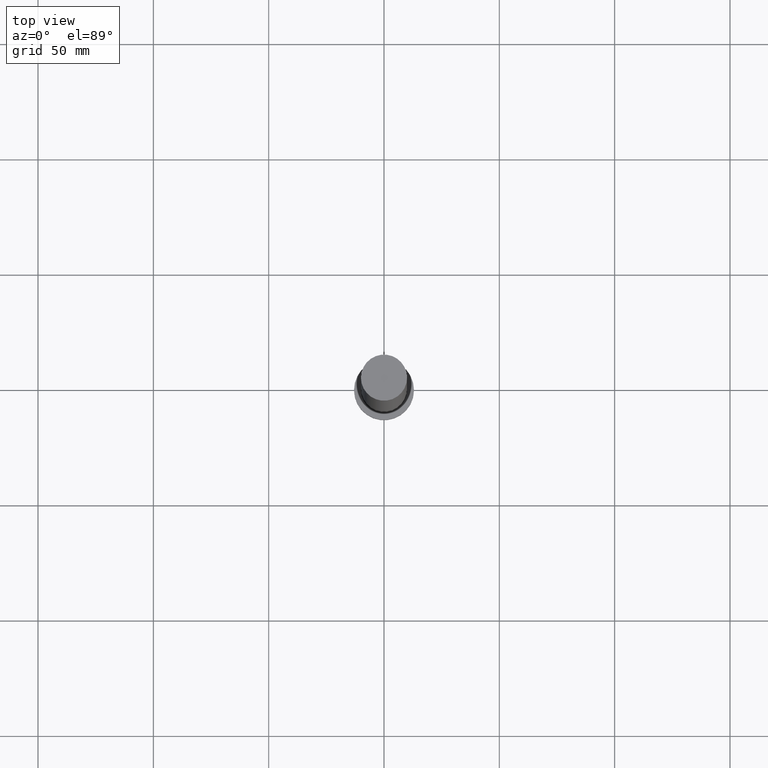
[diagram: clean part render]
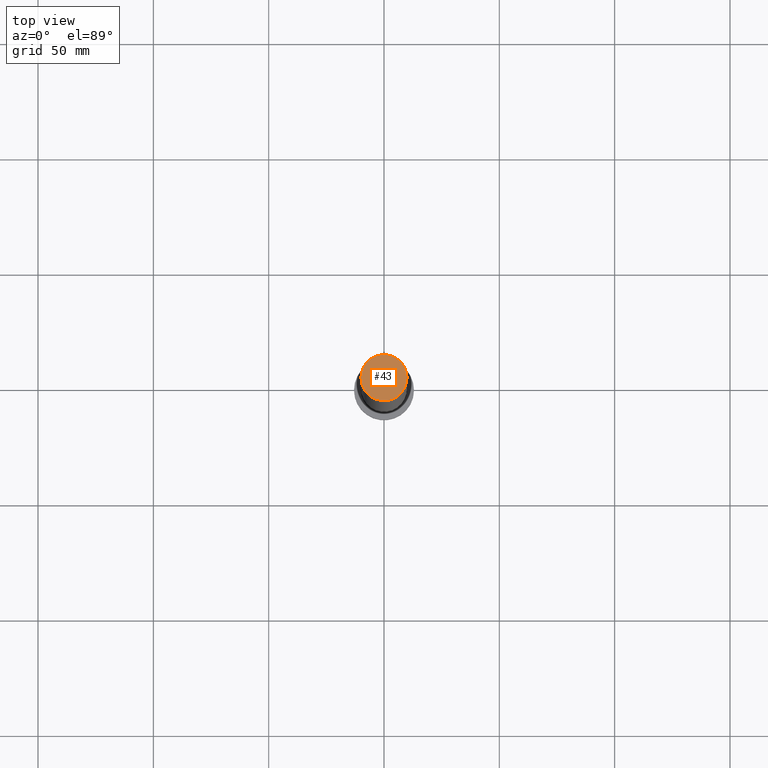
[diagram: same view with one face highlighted and labeled with its STEP entity id]
A machine part, top view. The second image highlights one B-rep face of the part: STEP entity #43.
In plain terms, the highlighted planar face has unit normal (0, 0, 1).
Its self-contained STEP definition (entity closure, byte-faithful):
#1 = CARTESIAN_POINT ( 'NONE',  ( -10.00000000000000000, 0.000000000000000000, 315.0000000000000000 ) ) ;
#6 = DIRECTION ( 'NONE',  ( 0.000000000000000000, 0.000000000000000000, 1.000000000000000000 ) ) ;
#32 = EDGE_CURVE ( 'NONE', #189, #156, #184, .T. ) ;
#43 = ADVANCED_FACE ( 'NONE', ( #131 ), #202, .T. ) ;
#63 = ORIENTED_EDGE ( 'NONE', *, *, #99, .T. ) ;
#78 = CARTESIAN_POINT ( 'NONE',  ( 0.000000000000000000, 0.000000000000000000, 315.0000000000000000 ) ) ;
#82 = DIRECTION ( 'NONE',  ( 1.000000000000000000, 0.000000000000000000, 0.000000000000000000 ) ) ;
#99 = EDGE_CURVE ( 'NONE', #156, #189, #240, .T. ) ;
#110 = AXIS2_PLACEMENT_3D ( 'NONE', #143, #213, #197 ) ;
#114 = AXIS2_PLACEMENT_3D ( 'NONE', #126, #6, #82 ) ;
#121 = DIRECTION ( 'NONE',  ( 1.000000000000000000, 0.000000000000000000, 0.000000000000000000 ) ) ;
#126 = CARTESIAN_POINT ( 'NONE',  ( 0.000000000000000000, 0.000000000000000000, 315.0000000000000000 ) ) ;
#127 = DIRECTION ( 'NONE',  ( 0.000000000000000000, 0.000000000000000000, 1.000000000000000000 ) ) ;
#131 = FACE_OUTER_BOUND ( 'NONE', #171, .T. ) ;
#143 = CARTESIAN_POINT ( 'NONE',  ( 0.000000000000000000, 0.000000000000000000, 315.0000000000000000 ) ) ;
#150 = AXIS2_PLACEMENT_3D ( 'NONE', #78, #127, #121 ) ;
#156 = VERTEX_POINT ( 'NONE', #244 ) ;
#171 = EDGE_LOOP ( 'NONE', ( #243, #63 ) ) ;
#184 = CIRCLE ( 'NONE', #114, 10.00000000000000000 ) ;
#189 = VERTEX_POINT ( 'NONE', #1 ) ;
#197 = DIRECTION ( 'NONE',  ( 1.000000000000000000, 0.000000000000000000, -0.000000000000000000 ) ) ;
#202 = PLANE ( 'NONE',  #110 ) ;
#213 = DIRECTION ( 'NONE',  ( 0.000000000000000000, 0.000000000000000000, 1.000000000000000000 ) ) ;
#240 = CIRCLE ( 'NONE', #150, 10.00000000000000000 ) ;
#243 = ORIENTED_EDGE ( 'NONE', *, *, #32, .T. ) ;
#244 = CARTESIAN_POINT ( 'NONE',  ( 10.00000000000000000, 1.224646799147353256E-15, 315.0000000000000000 ) ) ;